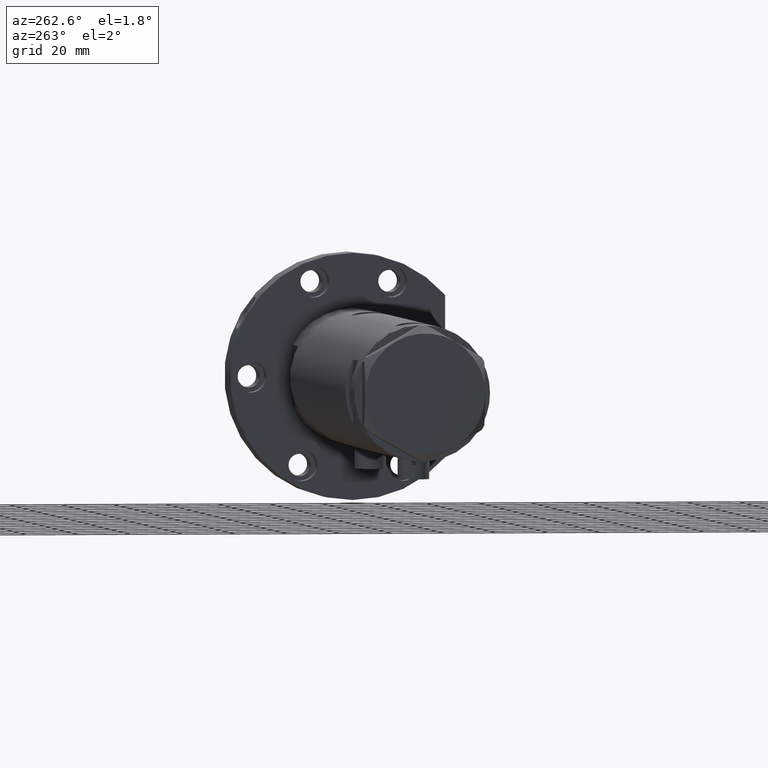
[diagram: clean part render]
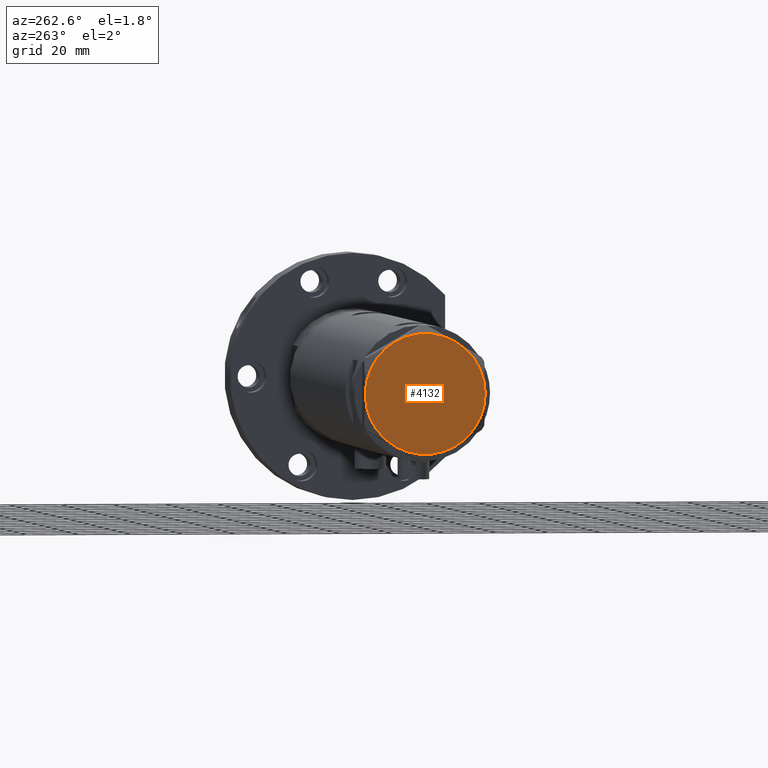
[diagram: same view with one face highlighted and labeled with its STEP entity id]
A machine part, auxiliary view. The second image highlights one B-rep face of the part: STEP entity #4132.
In plain terms, the highlighted planar face has unit normal (-1, -0, 0).
Its self-contained STEP definition (entity closure, byte-faithful):
#153 = EDGE_CURVE ( 'NONE', #2880, #6192, #324, .T. ) ;
#243 = AXIS2_PLACEMENT_3D ( 'NONE', #2371, #1397, #4005 ) ;
#324 = CIRCLE ( 'NONE', #3025, 23.00000000000004619 ) ;
#446 = CARTESIAN_POINT ( 'NONE',  ( 0.000000000000000000, 0.000000000000000000, 9.000000000000000000 ) ) ;
#466 = VERTEX_POINT ( 'NONE', #4925 ) ;
#487 = EDGE_CURVE ( 'NONE', #1217, #2880, #5021, .T. ) ;
#917 = ORIENTED_EDGE ( 'NONE', *, *, #3894, .T. ) ;
#1018 = PLANE ( 'NONE',  #2393 ) ;
#1086 = ORIENTED_EDGE ( 'NONE', *, *, #2647, .T. ) ;
#1126 = ORIENTED_EDGE ( 'NONE', *, *, #1938, .T. ) ;
#1217 = VERTEX_POINT ( 'NONE', #5308 ) ;
#1257 = AXIS2_PLACEMENT_3D ( 'NONE', #2395, #3419, #4399 ) ;
#1341 = ORIENTED_EDGE ( 'NONE', *, *, #153, .T. ) ;
#1397 = DIRECTION ( 'NONE',  ( 0.000000000000000000, 0.000000000000000000, 1.000000000000000000 ) ) ;
#1552 = CARTESIAN_POINT ( 'NONE',  ( 0.000000000000000000, 0.000000000000000000, 9.000000000000000000 ) ) ;
#1697 = CIRCLE ( 'NONE', #3045, 23.00000000000004619 ) ;
#1938 = EDGE_CURVE ( 'NONE', #6192, #2754, #2100, .T. ) ;
#2031 = DIRECTION ( 'NONE',  ( 1.000000000000000000, 0.000000000000000000, 0.000000000000000000 ) ) ;
#2100 = CIRCLE ( 'NONE', #3032, 23.00000000000004619 ) ;
#2154 = VERTEX_POINT ( 'NONE', #6179 ) ;
#2214 = CARTESIAN_POINT ( 'NONE',  ( 0.000000000000000000, 0.000000000000000000, 9.000000000000000000 ) ) ;
#2296 = CARTESIAN_POINT ( 'NONE',  ( 11.49999999999990408, 19.91858428704219364, 9.000000000000000000 ) ) ;
#2371 = CARTESIAN_POINT ( 'NONE',  ( 0.000000000000000000, 0.000000000000000000, 9.000000000000000000 ) ) ;
#2393 = AXIS2_PLACEMENT_3D ( 'NONE', #5019, #4624, #6139 ) ;
#2395 = CARTESIAN_POINT ( 'NONE',  ( 0.000000000000000000, 0.000000000000000000, 9.000000000000000000 ) ) ;
#2448 = DIRECTION ( 'NONE',  ( 1.000000000000000000, 0.000000000000000000, 0.000000000000000000 ) ) ;
#2523 = CARTESIAN_POINT ( 'NONE',  ( 0.000000000000000000, 0.000000000000000000, 9.000000000000000000 ) ) ;
#2647 = EDGE_CURVE ( 'NONE', #2154, #1217, #1697, .T. ) ;
#2754 = VERTEX_POINT ( 'NONE', #5740 ) ;
#2880 = VERTEX_POINT ( 'NONE', #4267 ) ;
#3025 = AXIS2_PLACEMENT_3D ( 'NONE', #2214, #5302, #4316 ) ;
#3032 = AXIS2_PLACEMENT_3D ( 'NONE', #446, #4318, #2448 ) ;
#3045 = AXIS2_PLACEMENT_3D ( 'NONE', #2523, #4588, #2031 ) ;
#3419 = DIRECTION ( 'NONE',  ( 0.000000000000000000, 0.000000000000000000, 1.000000000000000000 ) ) ;
#3496 = DIRECTION ( 'NONE',  ( 0.000000000000000000, 0.000000000000000000, 1.000000000000000000 ) ) ;
#3548 = DIRECTION ( 'NONE',  ( 1.000000000000000000, 0.000000000000000000, 0.000000000000000000 ) ) ;
#3610 = EDGE_CURVE ( 'NONE', #466, #2154, #3806, .T. ) ;
#3738 = ORIENTED_EDGE ( 'NONE', *, *, #3610, .T. ) ;
#3806 = CIRCLE ( 'NONE', #4437, 23.00000000000004619 ) ;
#3894 = EDGE_CURVE ( 'NONE', #2754, #466, #5275, .T. ) ;
#4005 = DIRECTION ( 'NONE',  ( 1.000000000000000000, 0.000000000000000000, 0.000000000000000000 ) ) ;
#4132 = ADVANCED_FACE ( 'NONE', ( #5579 ), #1018, .T. ) ;
#4267 = CARTESIAN_POINT ( 'NONE',  ( 22.99999999999995026, 2.373657066004705010E-13, 9.000000000000000000 ) ) ;
#4316 = DIRECTION ( 'NONE',  ( 1.000000000000000000, 0.000000000000000000, 0.000000000000000000 ) ) ;
#4318 = DIRECTION ( 'NONE',  ( 0.000000000000000000, 0.000000000000000000, 1.000000000000000000 ) ) ;
#4399 = DIRECTION ( 'NONE',  ( 1.000000000000000000, 0.000000000000000000, 0.000000000000000000 ) ) ;
#4437 = AXIS2_PLACEMENT_3D ( 'NONE', #1552, #3496, #3548 ) ;
#4479 = EDGE_LOOP ( 'NONE', ( #6269, #1341, #1126, #917, #3738, #1086 ) ) ;
#4588 = DIRECTION ( 'NONE',  ( 0.000000000000000000, 0.000000000000000000, 1.000000000000000000 ) ) ;
#4624 = DIRECTION ( 'NONE',  ( 0.000000000000000000, 0.000000000000000000, 1.000000000000000000 ) ) ;
#4925 = CARTESIAN_POINT ( 'NONE',  ( -23.00000000000004619, -8.112498833180673323E-14, 9.000000000000000000 ) ) ;
#5019 = CARTESIAN_POINT ( 'NONE',  ( 0.000000000000000000, 0.000000000000000000, 9.000000000000000000 ) ) ;
#5021 = CIRCLE ( 'NONE', #1257, 23.00000000000004619 ) ;
#5275 = CIRCLE ( 'NONE', #243, 23.00000000000004619 ) ;
#5302 = DIRECTION ( 'NONE',  ( 0.000000000000000000, 0.000000000000000000, 1.000000000000000000 ) ) ;
#5308 = CARTESIAN_POINT ( 'NONE',  ( 11.50000000000018296, -19.91858428704203732, 9.000000000000000000 ) ) ;
#5579 = FACE_OUTER_BOUND ( 'NONE', #4479, .T. ) ;
#5740 = CARTESIAN_POINT ( 'NONE',  ( -11.50000000000004441, 19.91858428704211548, 9.000000000000000000 ) ) ;
#6139 = DIRECTION ( 'NONE',  ( 1.000000000000000000, 0.000000000000000000, -0.000000000000000000 ) ) ;
#6179 = CARTESIAN_POINT ( 'NONE',  ( -11.49999999999990585, -19.91858428704219364, 9.000000000000000000 ) ) ;
#6192 = VERTEX_POINT ( 'NONE', #2296 ) ;
#6269 = ORIENTED_EDGE ( 'NONE', *, *, #487, .T. ) ;